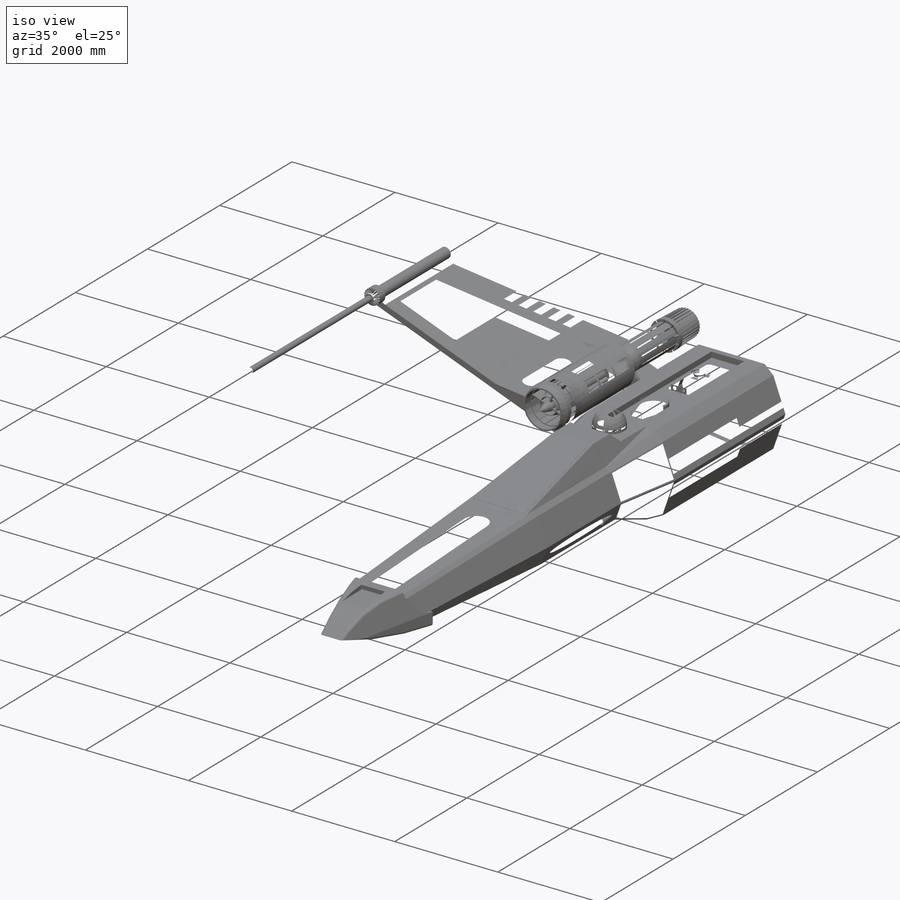
[diagram: iso view]
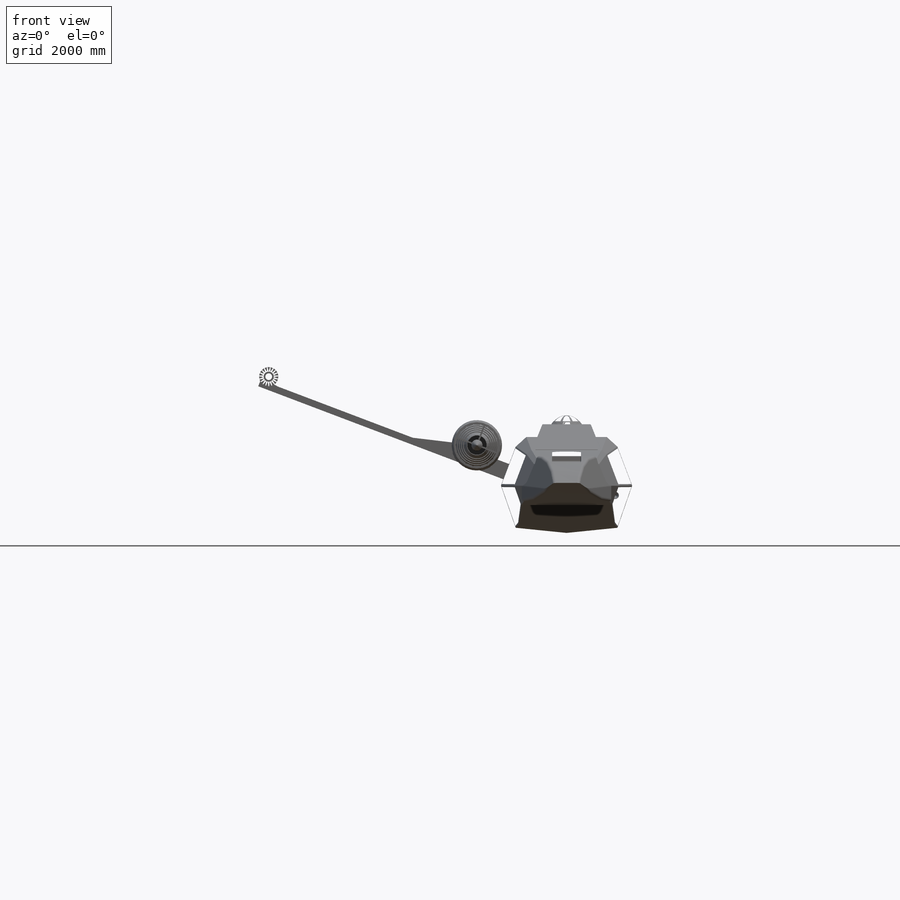
[diagram: front view]
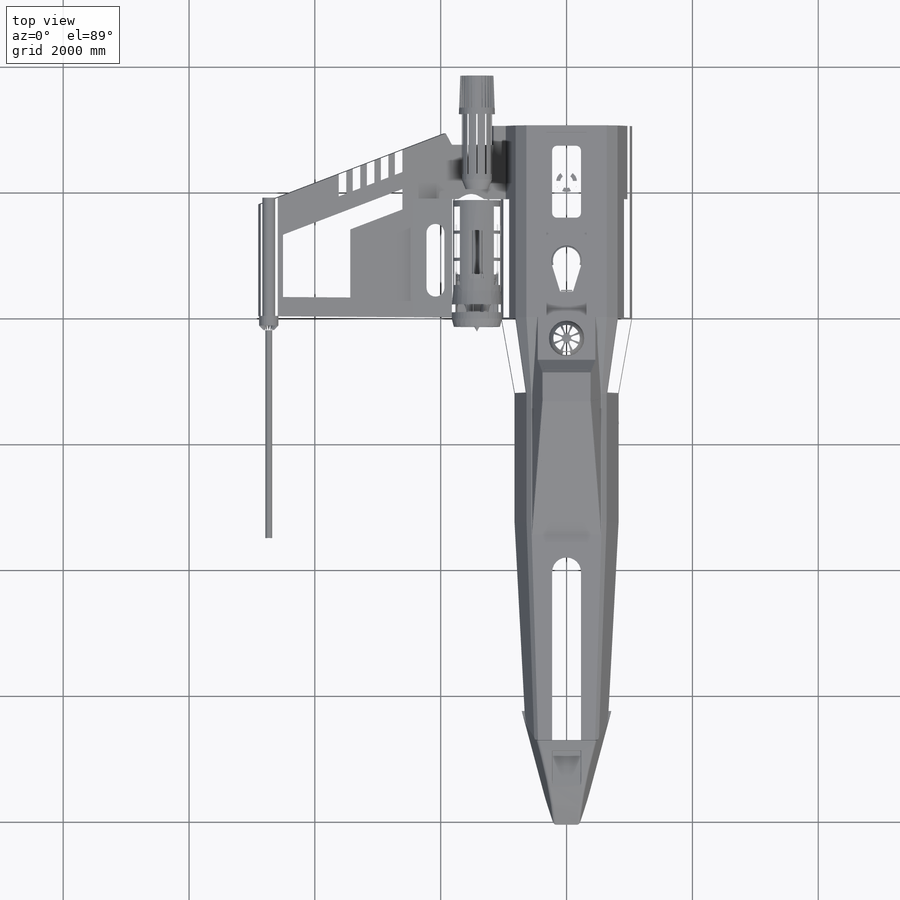
[diagram: top view]
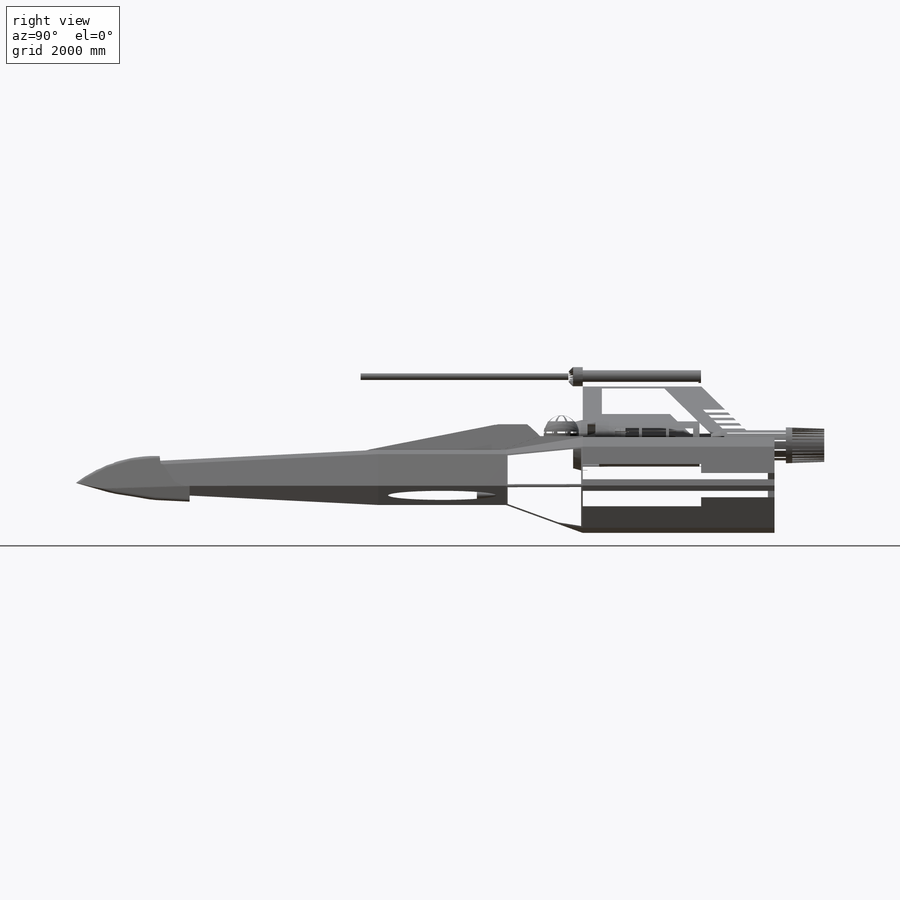
[diagram: right view]
SOLIDWORKS PART (.sldprt)
format: sldprt  version: not decoded by parser v0  size: 11,758,592 bytes
history: native  units: mm
features: sketch x72, extrude x47, cut_extrude x18, fillet x15, plane x10, chamfer x8, revolve x7, mirror x7, pattern_circular x7, dome x3, material x1, pattern_linear x1, boolean_combine x1, cut_revolve x1 (+9 scaffold rows collapsed)
feature tree (207):
  scaffold x9  (default folders/planes/origin — collapsed)
  material  "Acero aleado"
  plane  "Alzado"
  plane  "Planta"
  plane  "Vista lateral"
  sketch  "Croquis1"  dims[c1.D1=1524.0mm c1.D2=~419.184219mm c2.D2=115.0deg c2.D3=~419.184219mm c3.D3=140.0deg c3.D4=812.8mm c3.D5=711.2mm c3.D6=660.4mm c3.D7=228.6mm]
  extrude  "Saliente-Extruir1"  Depth=3048mm
  plane  "Plano1"  Offset=1219.2mm
  sketch  "Croquis2"  dims[D1=203.2mm]
  sketch  "Croquis3"  dims[c1.D1=~463.458006mm c2.D1=20.0deg]
  cut_extrude  "Cortar-Extruir1"  Depth=1685.798mm
  sketch  "Croquis4"  dims[D1=0.0mm]
  extrude  "Saliente-Extruir2"  Depth=2032mm
  plane  "Plano2"  Offset=4064mm
  sketch  "Croquis5"  dims[c1.D3=~123.44518mm c2.D3=45.0deg c2.D4=81.534mm c2.D5=~1121.713507mm c3.D5=45.0deg c3.D1=203.2mm c3.D2=203.2mm]
  extrude  "Recubrir2"  [1 undecoded]
  sketch  "Croquis6"  dims[D3=5638.8mm D4=2057.4mm D6=474.98mm D7=2057.4mm D1=76.2mm D2=251.46mm D5=1066.8mm]
  extrude  "Saliente-Extruir3"  Depth=1422.4mm
  sketch  "Croquis7"  dims[D1=487.934mm]
  cut_extrude  "Cortar-Extruir2"  [1 undecoded]
  sketch  "Croquis8"  dims[c1.D1=~496.662301mm c2.D1=135.0deg c2.D2=406.4mm c2.D3=457.2mm c2.D4=~1722.271184mm c3.D4=12.0deg]
  extrude  "Saliente-Extruir4"  Depth=762mm
  sketch  "Croquis9"  dims[D1=0.0mm]
  revolve  "Revolución1"  Angle=22deg
  mirror  "Simetría1"
  extrude  "Recubrir3"  [1 undecoded]
  extrude  "Recubrir4"  [1 undecoded]
  extrude  "Recubrir5"  [1 undecoded]
  sketch  "Croquis10"  dims[D1=50.8mm D2=416.56mm]
  extrude  "Saliente-Extruir5"  Depth=2.54mm
  sketch  "Croquis11"  dims[D1=50.8mm]
  extrude  "Saliente-Extruir6"  Depth=2.54mm
  sketch  "Croquis12"  dims[D1=50.8mm]
  extrude  "Saliente-Extruir7"  Depth=2.54mm
  sketch  "Croquis13"  dims[D1=558.8mm]
  extrude  "Saliente-Extruir8"  Depth=25.4mm
  sketch  "Croquis14"  dims[D1=106.68mm D2=635.0mm D3=25.4mm]
  cut_extrude  "Cortar-Extruir3"  Depth=106.68mm
  sketch  "Croquis15"  dims[D2=12.7mm D1=76.2mm]
  cut_extrude  "Cortar-Extruir4"  Depth=106.68mm
  sketch  "Croquis16"  dims[D1=4165.6mm D2=106.68mm D3=106.68mm]
  extrude  "Saliente-Extruir9"  [1 undecoded]
  sketch  "Croquis17"  dims[c1.D1=~1719.29724mm c2.D1=20.0deg c2.D2=1778.0mm c2.D3=~623.191368mm c3.D3=100.0deg c3.D4=711.2mm c3.D5=203.2mm c3.D6=304.8mm c4.D5=203.2mm]
  cut_extrude  "Cortar-Extruir5"  [1 undecoded]
  sketch  "Croquis18"  dims[c1.D1=762.0mm c1.D2=762.0mm c1.D3=762.0mm c2.D2=584.2mm c2.D3=355.6mm c3.D2=584.2mm]
  extrude  "Saliente-Extruir10"  Depth=1881.378mm
  sketch  "Croquis19"  dims[D1=355.6mm]
  extrude  "Saliente-Extruir11"  Depth=152.4mm
  sketch  "Croquis20"  dims[D1=0.0mm]
  extrude  "Saliente-Extruir12"  Depth=152.4mm
  sketch  "Croquis21"  dims[D1=0.0mm]
  extrude  "Saliente-Extruir13"  Depth=1651mm
  sketch  "Croquis22"  dims[D1=203.2mm D2=95.25mm]
  extrude  "Saliente-Extruir14"  Depth=1879.6mm
  sketch  "Croquis23"  dims[D1=304.8mm]
  extrude  "Saliente-Extruir15"  Depth=228.6mm
  sketch  "Croquis24"  dims[D1=106.68mm]
  extrude  "Saliente-Extruir16"  Depth=3937mm
  sketch  "Croquis25"  dims[D1=736.6mm]
  extrude  "Saliente-Extruir17"  Depth=152.4mm
  sketch  "Croquis26"  dims[D1=685.8mm]
  extrude  "Saliente-Extruir18"  Depth=76.2mm
  sketch  "Croquis27"  dims[D1=177.8mm D2=304.8mm D3=323.85mm D4=12.7mm D5=12.7mm]
  cut_extrude  "Cortar-Extruir6"  Depth=406.4mm
  sketch  "Croquis28"  dims[D1=0.0mm]
  cut_extrude  "Cortar-Extruir7"  Depth=228.6mm
  plane  "Plano3"  Offset=304.8mm
  sketch  "Croquis29"  dims[D1=228.6mm D2=50.8mm]
  revolve  "Revolución2"  Angle=180deg
  chamfer  "Chaflán1"  Distance=469.9mm Angle=5deg
  plane  "Plano4"
  sketch  "Croquis31"  dims[D1=12.7mm D2=25.4mm D3=106.68mm]
  revolve  "Revolución3"  Angle=360deg
  sketch  "Croquis32"  dims[D1=19.05mm D2=63.5mm]
  extrude  "Saliente-Extruir19"  Depth=76.2mm
  pattern_circular  "MatrizC1"  Count=42 Angle=8.571429deg
  sketch  "Croquis33"  dims[D1=25.4mm]
  extrude  "Saliente-Extruir20"  Depth=609.6mm
  sketch  "Croquis34"  dims[D2=12.7mm D3=50.8mm D1=0.0mm]
  cut_extrude  "Cortar-Extruir8"  Depth=508mm
  pattern_circular  "MatrizC2"  Count=29 Angle=360deg
  mirror  "Ángulo de salida2"
  sketch  "Croquis36"  dims[c1.D1=476.25mm c1.D2=~399.424171mm c1.D3=~318.571655mm c1.D4=~211.644231mm c1.D5=~89.315493mm c2.D2=58.674mm c2.D3=25.4mm c2.D4=50.8mm c2.D5=25.4mm]
  cut_extrude  "Cortar-Extruir9"  Depth=101.6mm
  sketch  "Croquis37"  dims[D1=4.2291mm D2=4.2291mm]
  extrude  "Saliente-Extruir21"  [1 undecoded]
  pattern_circular  "MatrizC3"  Count=21 Angle=17.142857deg
  mirror  "Ángulo de salida3"
  mirror  "Ángulo de salida4"
  chamfer  "Chaflán2"  Distance=377.19mm Angle=78deg
  sketch  "Croquis38"  dims[D3=11.43mm D1=53.975mm D2=53.975mm]
  extrude  "Saliente-Extruir22"  [1 undecoded]
  pattern_circular  "MatrizC4"  Count=18 Angle=360deg
  sketch  "Croquis39"
  sketch  "Croquis41"  dims[D1=546.1mm D2=88.9mm D3=228.6mm]
  revolve  "Revolución4"  Angle=360deg
  chamfer  "Chaflán3"  Distance=38.1mm Angle=75deg
  sketch  "Croquis43"  dims[c1.D1=167.64mm c1.D2=~10.993575mm c2.D2=15.0deg c2.D3=152.4mm c3.D3=15.0deg c3.D4=38.1mm]
  cut_extrude  "Cortar-Extruir10"  Depth=76.2mm
  fillet  "Redondeo3"  Radius=12.7mm
  pattern_circular  "MatrizC6"  Count=19 Angle=360deg
  chamfer  "Chaflán4"  Distance=71.12mm Angle=45deg
  plane  "Plano5"  Offset=533.4mm
  sketch  "Croquis44"  dims[D1=203.2mm]
  extrude  "Saliente-Extruir23"  Depth=101.6mm
  mirror  "Ángulo de salida5"
  sketch  "Croquis45"  dims[c1.D1=152.4mm c1.D2=~423.216615mm c2.D2=~20.772322deg c3.D2=~642.966652mm c4.D2=14.0deg c4.D3=~186.786097mm c5.D3=90.0deg c5.D1=152.4mm c5.D2=~978.090535mm c6.D2=90.0deg c6.D3=508.0mm c6.D4=~507.150114mm c7.D4=14.0deg]
  sketch  "Croquis46"  dims[D1=19.05mm]
  extrude  "Saliente-Extruir24"  Depth=381mm
  chamfer  "Chaflán5"  Distance=256.54mm Angle=5deg
  chamfer  "Chaflán6"  Distance=152.4mm Angle=45deg
  fillet  "Redondeo4"  Radius=25.4mm
  sketch  "Croquis47"  dims[c1.D2=6.35mm c2.D2=30.0deg c2.D3=6.35mm c3.D3=45.0deg c3.D1=6.35mm]
  extrude  "Saliente-Extruir25"  Depth=381mm
  pattern_linear  "MatrizL1"  Count1=3 Count2=1 Spacing1=431.8mm Spacing2=2.54mm
  sketch  "Croquis48"  dims[D1=0.0mm D2=10.795mm D3=10.795mm]
  extrude  "Saliente-Extruir26"  Depth=1016mm
  chamfer  "Chaflán7"  Distance=1016mm Angle=2.8deg
  pattern_circular  "MatrizC7"  Count=10 Angle=36deg
  sketch  "Croquis49"  dims[c1.D2=~6.171636mm c2.D2=40.0deg c2.D3=6.35mm c3.D3=20.0deg c3.D1=6.35mm]
  extrude  "Saliente-Extruir27"  Depth=762mm
  sketch  "Croquis50"  dims[c1.D1=~972.373694mm c2.D1=110.0deg c2.D2=2159.0mm c2.D3=381.0mm c2.D4=1143.0mm c2.D5=990.6mm c2.D6=304.8mm c2.D7=304.8mm c2.D8=127.0mm c2.D9=254.0mm c2.D11=254.0mm c2.D10=5.0]
  extrude  "Saliente-Extruir28"  Depth=1.27mm
  fillet  "Redondeo7"  Radius=50.8mm
  plane  "Plano6"  Offset=635mm
  sketch  "Croquis54"  dims[D2=101.6mm D3=228.6mm D1=0.0mm]
  cut_extrude  "Cortar-Extruir15"  Depth=1092.2mm
  fillet  "Redondeo13"  Radius=25.4mm
  fillet  "Redondeo15"  Radius=12.7mm
  fillet  "Redondeo16"  Radius=12.7mm
  sketch  "Croquis55"  dims[D1=152.4mm]
  extrude  "Saliente-Extruir29"  Depth=101.6mm
  sketch  "Croquis56"  dims[D1=203.2mm]
  extrude  "Saliente-Extruir30"  Depth=76.2mm
  dome  "Cúpula1"
  sketch  "Croquis58"  dims[D2=63.5mm D3=25.4mm D1=6.35mm D4=241.3mm]
  extrude  "Saliente-Extruir31"  [1 undecoded]
  chamfer  "Chaflán10"  Distance=50.8mm Angle=7deg
  extrude  "Saliente-Extruir32"  [1 undecoded]
  sketch  "Croquis59"
  extrude  "Saliente-Extruir33"  Depth=6.35mm
  sketch  "Croquis60"  dims[c1.D1=1270.0mm c1.D2=~481.905187mm c2.D2=~29.351242deg c3.D2=~481.905187mm c4.D2=13.0]
  extrude  "Saliente-Extruir34"  Depth=6.35mm
  sketch  "Croquis72"  dims[D1=0.0mm D2=50.8mm]
  extrude  "Saliente-Extruir38"  Depth=0.0254mm
  mirror  "Simetría8"
  mirror  "Simetría9"
  boolean_combine  "Combinar1"
  sketch  "Croquis61"  dims[D1=1714.5mm D2=76.2mm]
  dome  "Cúpula2"
  sketch  "Croquis63"  dims[c1.D5=50.8mm c1.D7=50.8mm c1.D4=44.45mm c1.D1=127.0mm c1.D2=12.7mm c1.D3=15.24mm c2.D4=190.5mm c2.D6=~55.578662mm c3.D6=42.0deg c3.D5=~45.169122mm c4.D5=42.0deg c4.D6=25.4mm c4.D7=190.5mm c4.D8=63.5mm c4.D9=~87.169408mm c5.D8=88.9mm c5.D9=~65.230592mm c5.D7=190.5mm c6.D9=~47.511374mm c6.D8=53.34mm c7.D9=~94.728626mm c7.D8=53.34mm c8.D9=~94.728626mm]
  extrude  "Saliente-Extruir35"  Depth=2.54mm
  pattern_circular  "MatrizC8"  Count=8 Angle=45deg
  plane  "Plano7"  Offset=342.9mm
  sketch  "Croquis65"  dims[c1.D1=127.0mm c1.D2=~86.155771mm c2.D2=90.0deg c3.D2=~73.348832mm c4.D2=80.0deg c4.D3=88.9mm]
  sketch  "Croquis69"  dims[D1=25.4mm]
  sketch  "Croquis70"  dims[D1=25.4mm]
  sketch  "Croquis73"  dims[D3=76.2mm D5=241.3mm D1=1143.0mm D2=457.2mm D4=488.95mm D6=203.2mm D7=381.0mm D8=685.8mm]
  extrude  "Saliente-Extruir39"  [1 undecoded]
  fillet  "Redondeo18"  Radius=25.4mm
  sketch  "Croquis74"  dims[D2=5.08mm D3=6.35mm D4=6.35mm D1=0.0mm]
  cut_extrude  "Cortar-Extruir19"  Depth=499.1354mm
  fillet  "Redondeo19"  Radius=6.35mm
  sketch  "Croquis75"  dims[D1=342.9mm D2=76.2mm D3=114.3mm D4=114.3mm D5=317.5mm D6=317.5mm D7=165.1mm D8=165.1mm D9=27.94mm D10=27.94mm D11=53.34mm D12=53.34mm D13=27.94mm D14=27.94mm]
  cut_extrude  "Cortar-Extruir20"  Depth=33.0454mm
  sketch  "Croquis76"  dims[D1=190.5mm]
  extrude  "Saliente-Extruir40"  Depth=20.32mm
  sketch  "Croquis77"  dims[c1.D2=~63.971169mm c2.D2=65.0deg c3.D2=~63.971169mm c4.D2=32.5deg c4.D3=~64.558382mm c5.D3=32.5deg c5.D5=95.25mm c5.D1=0.0mm c5.D4=3.0]
  extrude  "Saliente-Extruir41"  Depth=20.32mm
  fillet  "Redondeo22"  Radius=6.35mm
  fillet  "Redondeo23"  Radius=6.35mm
  sketch  "Croquis78"  dims[D2=68.58mm D1=0.0mm]
  extrude  "Saliente-Extruir42"  Depth=517.144mm
  sketch  "Croquis80"  dims[c1.D5=101.6mm c1.D3=635.0mm c1.D4=863.6mm c1.D6=127.0mm c1.D7=279.4mm c1.D8=63.5mm c1.D9=71.12mm c1.D10=57.15mm c1.D11=~68.292692mm c2.D11=50.0deg c2.D12=57.15mm c2.D13=101.6mm c2.D14=101.6mm c2.D15=57.15mm c2.D16=6.858mm c2.D17=6.858mm c2.D18=6.858mm c2.D19=6.858mm c2.D1=0.0mm c2.D2=50.8mm c3.D1=50.8mm]
  extrude  "Saliente-Extruir44"  Depth=88.9mm
  sketch  "Croquis81"  dims[c1.D1=~510.909695mm c2.D1=50.0deg c2.D2=57.658mm c2.D3=101.6mm c2.D4=57.658mm c2.D5=57.658mm c2.D6=101.6mm c2.D7=6.858mm c2.D8=~165.874128mm c3.D8=~179.343554deg c4.D8=6.858mm c4.D9=6.858mm]
  extrude  "Saliente-Extruir45"  Depth=88.9mm
  fillet  "Redondeo24"  Radius=6.35mm
  sketch  "Croquis82"  dims[D1=101.6mm D2=190.5mm]
  revolve  "Revolución7"  Angle=360deg
  sketch  "Croquis83"
  cut_extrude  "Cortar-Extruir21"  Depth=38.1mm
  fillet  "Redondeo25"  Radius=6.35mm
  fillet  "Redondeo26"  Radius=6.35mm
  sketch  "Croquis85"  dims[D1=457.2mm]
  revolve  "Revolución8"  Angle=360deg
  fillet  "Redondeo27"  Radius=6.35mm
  cut_extrude  "Cortar-Extruir22"  Depth=38.1mm
  cut_extrude  "Cortar-Extruir23"  Depth=38.1mm
  cut_revolve  "Cortar-Revolución1"  Angle=360deg
  extrude  "Saliente-Extruir46"  Depth=271.78mm
  sketch  "Croquis86"
  cut_extrude  "Cortar-Extruir24"  Depth=17.78mm
  dome  "Cúpula3"
  sketch  "Croquis87"  dims[D1=304.8mm D2=6.35mm]
  revolve  "Revolución9"  Angle=180deg
  fillet  "Redondeo28"  Radius=5.08mm
  sketch  "Croquis88"  dims[D1=2286.0mm D2=457.2mm]
  cut_extrude  "Cortar-Extruir26"  Depth=2.54mm
decode coverage: 160 of 187 modeling features carry decoded parameters
note: ~ marks probable driven/reference dimensions
note: 12 parameter values undecoded
summary: no parameter record found for 12 features
note: suppression state not decoded; provenance and decode notes live in map.json
